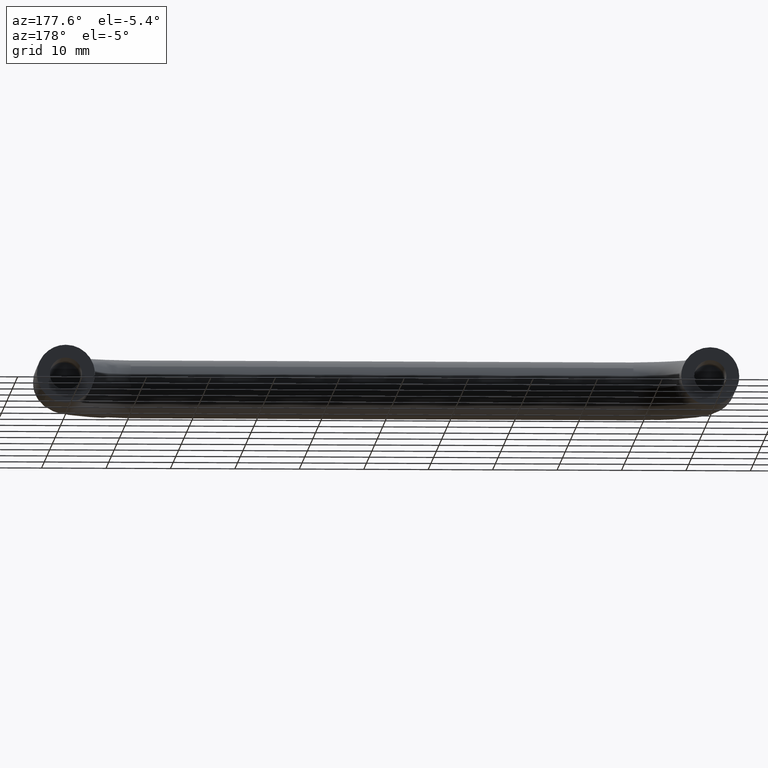
[diagram: clean part render]
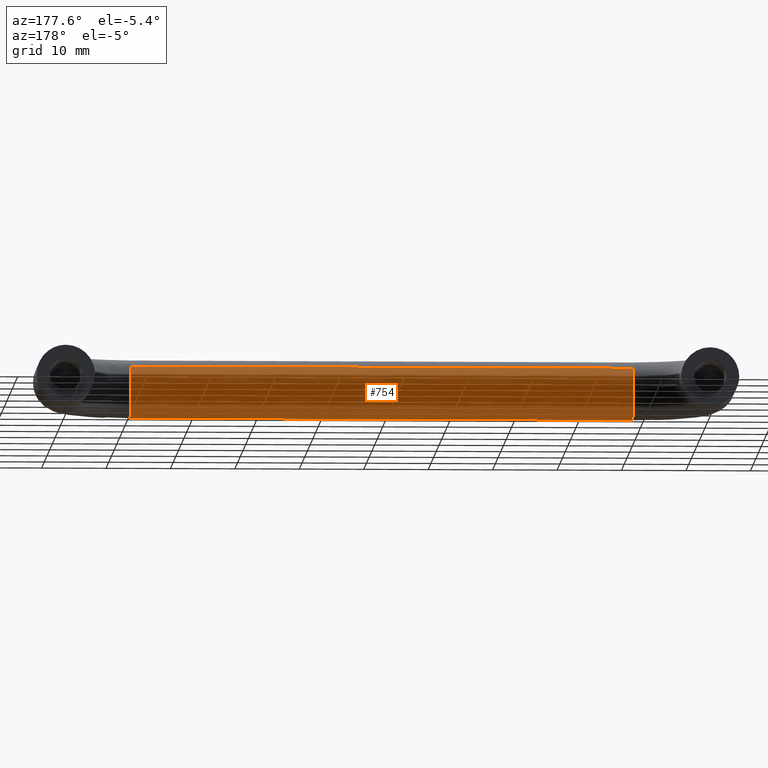
[diagram: same view with one face highlighted and labeled with its STEP entity id]
A machine part, auxiliary view. The second image highlights one B-rep face of the part: STEP entity #754.
In plain terms, the highlighted face is a freeform B-spline surface patch.
Its self-contained STEP definition (entity closure, byte-faithful):
#491=CARTESIAN_POINT('',(89.000000000223238,-21.0,-1.105147E-016));
#492=VERTEX_POINT('',#491);
#508=CARTESIAN_POINT('',(89.000000000211301,-22.459843823345700,3.317748236792478));
#509=VERTEX_POINT('',#508);
#510=CARTESIAN_POINT('',(89.000000000211301,-22.459843823345700,3.317748236792478));
#511=CARTESIAN_POINT('',(89.000000000213745,-22.158905764749811,3.042164715641997));
#512=CARTESIAN_POINT('',(89.000000000217284,-21.745646009634338,2.544185631447464));
#513=CARTESIAN_POINT('',(89.000000000220382,-21.332270213990991,1.748661098214341));
#514=CARTESIAN_POINT('',(89.000000000222855,-21.070596509815559,0.952065647416909));
#515=CARTESIAN_POINT('',(89.000000000223267,-20.999920284227411,0.349756145389023));
#516=CARTESIAN_POINT('',(89.000000000223238,-21.0,-1.105147E-016));
#517=B_SPLINE_CURVE_WITH_KNOTS('',3,(#510,#511,#512,#513,#514,#515,#516),.UNSPECIFIED.,.F.,.U.,(4,1,1,1,4),(0.000000036382441,1.224130083459019,1.923606279226009,2.681415740016601,3.730667463451531),.UNSPECIFIED.);
#518=EDGE_CURVE('',#509,#492,#517,.T.);
#577=CARTESIAN_POINT('',(89.000000000160043,-28.540156176654289,-3.317748236792481));
#578=VERTEX_POINT('',#577);
#588=CARTESIAN_POINT('',(89.000000000185310,-25.500001312188399,-4.499999999999809));
#589=VERTEX_POINT('',#588);
#590=CARTESIAN_POINT('',(89.000000000185310,-25.500001312188399,-4.499999999999809));
#591=CARTESIAN_POINT('',(89.000000000181743,-25.969430959617750,-4.500222251265438));
#592=CARTESIAN_POINT('',(89.000000000174722,-26.699441007453458,-4.384689839637398));
#593=CARTESIAN_POINT('',(89.000000000167503,-27.728187873410882,-3.949814018515006));
#594=CARTESIAN_POINT('',(89.000000000162387,-28.258238304729389,-3.576238456181911));
#595=CARTESIAN_POINT('',(89.000000000160043,-28.540156176654289,-3.317748236792481));
#596=B_SPLINE_CURVE_WITH_KNOTS('',3,(#590,#591,#592,#593,#594,#595),.UNSPECIFIED.,.F.,.U.,(4,1,1,4),(0.000000026929490,1.408202512252188,2.190534403298451,3.337959714510157),.UNSPECIFIED.);
#597=EDGE_CURVE('',#589,#578,#596,.T.);
#599=CARTESIAN_POINT('',(89.000000000223238,-21.0,-1.105147E-016));
#600=CARTESIAN_POINT('',(89.000000000223380,-20.999653604938111,-0.497064278125001));
#601=CARTESIAN_POINT('',(89.000000000222144,-21.120202177012960,-1.214737370912244));
#602=CARTESIAN_POINT('',(89.000000000218861,-21.512996026434848,-2.130815912471276));
#603=CARTESIAN_POINT('',(89.000000000215024,-22.012136737755078,-2.908787794740501));
#604=CARTESIAN_POINT('',(89.000000000209283,-22.654643835962251,-3.528057628760651));
#605=CARTESIAN_POINT('',(89.000000000203059,-23.387055615888741,-3.991675716635962));
#606=CARTESIAN_POINT('',(89.000000000195868,-24.248447912415379,-4.373632972403902));
#607=CARTESIAN_POINT('',(89.000000000189601,-25.002943509807810,-4.500338944474606));
#608=CARTESIAN_POINT('',(89.000000000185310,-25.500001312188399,-4.499999999999809));
#609=B_SPLINE_CURVE_WITH_KNOTS('',3,(#599,#600,#601,#602,#603,#604,#605,#606,#607,#608),.UNSPECIFIED.,.F.,.U.,(4,1,1,1,1,1,1,4),(0.000000129990359,1.491032182040982,2.153731769110084,2.982097594652266,4.252219692169952,4.804454692762800,5.577597024605606,7.068628562522979),.UNSPECIFIED.);
#610=EDGE_CURVE('',#492,#589,#609,.T.);
#638=CARTESIAN_POINT('',(10.999999999880201,-22.459843823615191,3.317748237039413));
#639=VERTEX_POINT('',#638);
#640=CARTESIAN_POINT('',(10.999999999880201,-22.459843823615191,3.317748237039413));
#641=CARTESIAN_POINT('',(89.000000000211301,-22.459843823345700,3.317748236792478));
#642=QUASI_UNIFORM_CURVE('',1,(#640,#641),.UNSPECIFIED.,.F.,.U.);
#643=EDGE_CURVE('',#639,#509,#642,.T.);
#671=CARTESIAN_POINT('',(10.999999999887480,-28.540156176384809,-3.317748237039410));
#672=VERTEX_POINT('',#671);
#683=CARTESIAN_POINT('',(10.999999999887480,-28.540156176384809,-3.317748237039410));
#684=CARTESIAN_POINT('',(89.000000000160043,-28.540156176654289,-3.317748236792481));
#685=QUASI_UNIFORM_CURVE('',1,(#683,#684),.UNSPECIFIED.,.F.,.U.);
#686=EDGE_CURVE('',#672,#578,#685,.T.);
#693=CARTESIAN_POINT('',(9.049999999869829,-28.540155934270469,-3.317748015645557));
#694=CARTESIAN_POINT('',(9.049999999869829,-25.222407918624910,-6.357903949916027));
#695=CARTESIAN_POINT('',(9.049999999869829,-22.182251984354441,-3.040155934270470));
#696=CARTESIAN_POINT('',(9.049999999869829,-19.142096050083982,0.277592081375087));
#697=CARTESIAN_POINT('',(9.049999999869829,-22.459844065729531,3.317748015645557));
#698=CARTESIAN_POINT('',(90.998750000232064,-28.540155934270459,-3.317748015645557));
#699=CARTESIAN_POINT('',(90.998750000232064,-25.222407918624910,-6.357903949916027));
#700=CARTESIAN_POINT('',(90.998750000232064,-22.182251984354430,-3.040155934270470));
#701=CARTESIAN_POINT('',(90.998750000232064,-19.142096050083968,0.277592081375087));
#702=CARTESIAN_POINT('',(90.998750000232064,-22.459844065729520,3.317748015645557));
#710=(BOUNDED_SURFACE()B_SPLINE_SURFACE(2,1,((#693,#698),(#694,#699),(#695,#700),(#696,#701),(#697,#702)),.UNSPECIFIED.,.F.,.F.,.U.)B_SPLINE_SURFACE_WITH_KNOTS((3,2,3),(2,2),(0.0,7.455844122715710,14.911688245431421),(0.0,81.948750000362239),.UNSPECIFIED.)GEOMETRIC_REPRESENTATION_ITEM()RATIONAL_B_SPLINE_SURFACE(((1.0,1.0),(0.707106781186548,0.707106781186548),(1.0,1.0),(0.707106781186548,0.707106781186548),(1.0,1.0)))REPRESENTATION_ITEM('')SURFACE());
#711=ORIENTED_EDGE('',*,*,#518,.T.);
#712=ORIENTED_EDGE('',*,*,#610,.T.);
#713=ORIENTED_EDGE('',*,*,#597,.T.);
#714=ORIENTED_EDGE('',*,*,#686,.F.);
#715=CARTESIAN_POINT('',(10.999999999883840,-25.500001312188399,-4.499999999999809));
#716=VERTEX_POINT('',#715);
#717=CARTESIAN_POINT('',(10.999999999883840,-25.500001312188399,-4.499999999999809));
#718=CARTESIAN_POINT('',(10.999999999884190,-25.812936394199429,-4.500045574269570));
#719=CARTESIAN_POINT('',(10.999999999884951,-26.386615369414809,-4.439899855585603));
#720=CARTESIAN_POINT('',(10.999999999886130,-27.455105240255790,-4.114698177246059));
#721=CARTESIAN_POINT('',(10.999999999887050,-28.143070232979952,-3.682264284246935));
#722=CARTESIAN_POINT('',(10.999999999887480,-28.540156176384809,-3.317748237039410));
#723=B_SPLINE_CURVE_WITH_KNOTS('',3,(#717,#718,#719,#720,#721,#722),.UNSPECIFIED.,.F.,.U.,(4,1,1,4),(0.000000026927752,0.938803312517889,1.721117551084434,3.337959714144676),.UNSPECIFIED.);
#724=EDGE_CURVE('',#716,#672,#723,.T.);
#725=ORIENTED_EDGE('',*,*,#724,.F.);
#726=CARTESIAN_POINT('',(10.999999999878449,-21.0,-2.209820E-016));
#727=VERTEX_POINT('',#726);
#728=CARTESIAN_POINT('',(10.999999999878449,-21.0,-2.209820E-016));
#729=CARTESIAN_POINT('',(10.999999999878471,-20.999966456636908,-0.312924423594947));
#730=CARTESIAN_POINT('',(10.999999999878510,-21.073203574506611,-1.012427034785604));
#731=CARTESIAN_POINT('',(10.999999999878931,-21.386577678668122,-1.905630895116580));
#732=CARTESIAN_POINT('',(10.999999999879639,-21.933283964423079,-2.805178714098325));
#733=CARTESIAN_POINT('',(10.999999999880210,-22.617021597614070,-3.514629866125145));
#734=CARTESIAN_POINT('',(10.999999999881711,-23.464774584118089,-4.044036750630277));
#735=CARTESIAN_POINT('',(10.999999999882281,-24.395622511929119,-4.403119282790645));
#736=CARTESIAN_POINT('',(10.999999999883510,-25.076600165066459,-4.500173526276408));
#737=CARTESIAN_POINT('',(10.999999999883840,-25.500001312188399,-4.499999999999809));
#738=B_SPLINE_CURVE_WITH_KNOTS('',3,(#728,#729,#730,#731,#732,#733,#734,#735,#736,#737),.UNSPECIFIED.,.F.,.U.,(4,1,1,1,1,1,1,4),(0.000000129996293,0.938782926623967,2.098501651816387,2.816411401930907,4.086532423584855,5.025345881810569,5.798488213865023,7.068628562522971),.UNSPECIFIED.);
#739=EDGE_CURVE('',#727,#716,#738,.T.);
#740=ORIENTED_EDGE('',*,*,#739,.F.);
#741=CARTESIAN_POINT('',(10.999999999880201,-22.459843823615191,3.317748237039413));
#742=CARTESIAN_POINT('',(10.999999999879940,-22.201926550637989,3.081512662578266));
#743=CARTESIAN_POINT('',(10.999999999879339,-21.780030710565210,2.592897143344239));
#744=CARTESIAN_POINT('',(10.999999999878840,-21.313113446799491,1.735683704273253));
#745=CARTESIAN_POINT('',(10.999999999878510,-21.054747586120399,0.874376863765460));
#746=CARTESIAN_POINT('',(10.999999999878449,-20.999983163822840,0.272025064617414));
#747=CARTESIAN_POINT('',(10.999999999878449,-21.0,-2.209820E-016));
#748=B_SPLINE_CURVE_WITH_KNOTS('',3,(#741,#742,#743,#744,#745,#746,#747),.UNSPECIFIED.,.F.,.U.,(4,1,1,1,4),(0.000000036383026,1.049251759939157,1.923606279414480,2.914585473656105,3.730667463817055),.UNSPECIFIED.);
#749=EDGE_CURVE('',#639,#727,#748,.T.);
#750=ORIENTED_EDGE('',*,*,#749,.F.);
#751=ORIENTED_EDGE('',*,*,#643,.T.);
#752=EDGE_LOOP('',(#711,#712,#713,#714,#725,#740,#750,#751));
#753=FACE_OUTER_BOUND('',#752,.T.);
#754=ADVANCED_FACE('',(#753),#710,.T.);